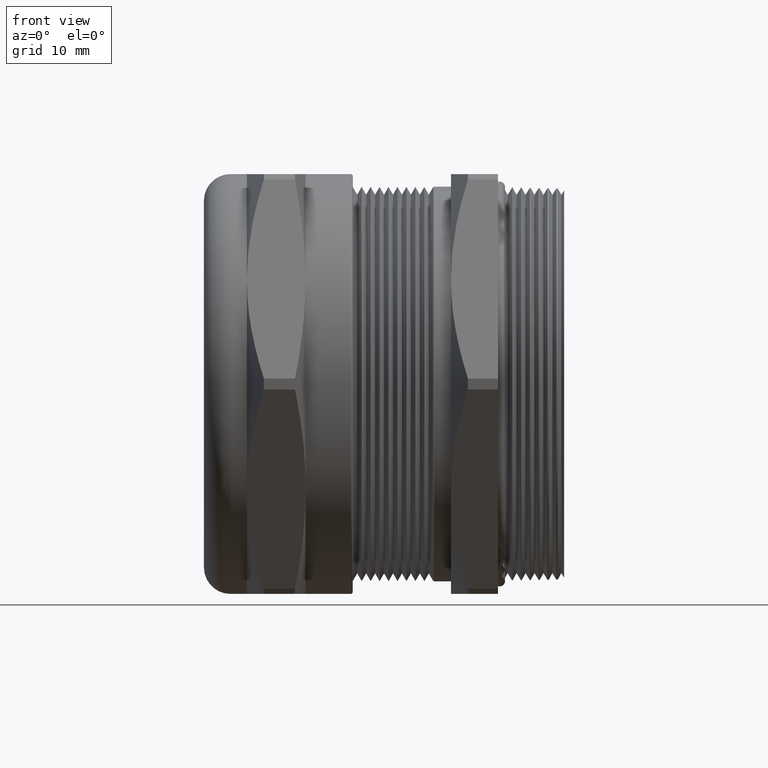
[diagram: clean part render]
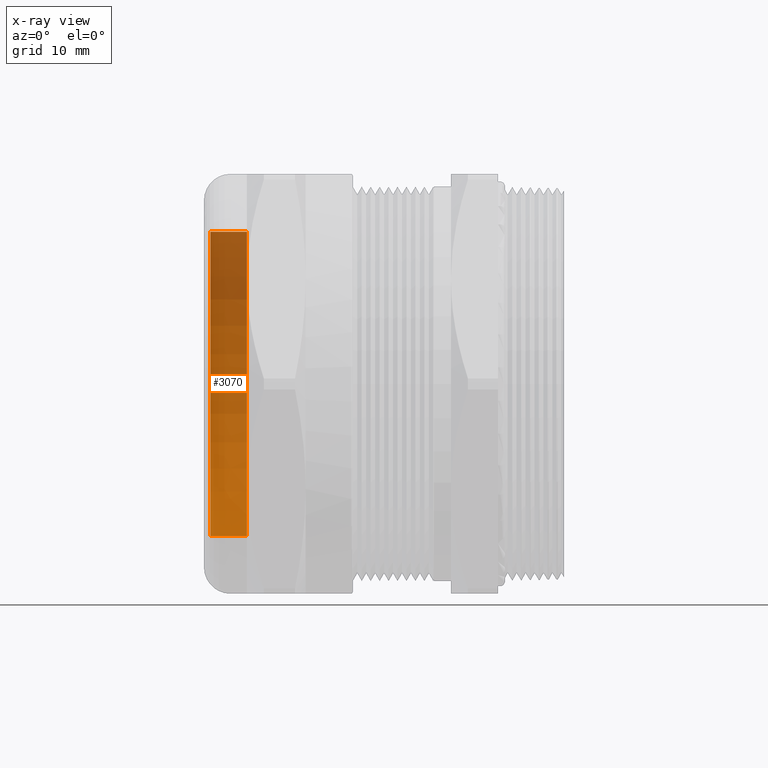
[diagram: x-ray — body ghosted, one internal face saturated and labeled with its STEP entity id]
A machine part, front view, then the same camera in x-ray: the body is ghosted and one INTERNAL B-rep face — a face not visible from any outside direction — is saturated and labeled: STEP entity #3070.
In plain terms, the highlighted cylindrical surface (partial cylindrical patch) has radius 18.1388 mm, axis along (1, 0, 0).
Its self-contained STEP definition (entity closure, byte-faithful):
#594 = DIRECTION ( 'NONE',  ( 0.0000000000000000000, 0.0000000000000000000, -1.000000000000000000 ) ) ;
#595 = DIRECTION ( 'NONE',  ( 1.000000000000000000, 0.0000000000000000000, 0.0000000000000000000 ) ) ;
#596 = CARTESIAN_POINT ( 'NONE',  ( 0.5452584728366800500, 0.0000000000000000000, 0.0000000000000000000 ) ) ;
#597 = AXIS2_PLACEMENT_3D ( 'NONE', #596, #595, #594 ) ;
#598 = CYLINDRICAL_SURFACE ( 'NONE', #597, 0.7141249999999999000 ) ;
#599 = FACE_OUTER_BOUND ( 'NONE', #4267, .T. ) ;
#605 = DIRECTION ( 'NONE',  ( 0.0000000000000000000, 0.0000000000000000000, -1.000000000000000000 ) ) ;
#606 = DIRECTION ( 'NONE',  ( 1.000000000000000000, 0.0000000000000000000, 0.0000000000000000000 ) ) ;
#607 = CARTESIAN_POINT ( 'NONE',  ( -0.8149999999999996100, 0.0000000000000000000, 0.0000000000000000000 ) ) ;
#608 = AXIS2_PLACEMENT_3D ( 'NONE', #607, #606, #605 ) ;
#609 = CIRCLE ( 'NONE', #608, 0.7141249999999999000 ) ;
#1885 = CARTESIAN_POINT ( 'NONE',  ( -0.8149999999999996100, 0.0000000000000000000, -0.7141249999999999000 ) ) ;
#1891 = CARTESIAN_POINT ( 'NONE',  ( -0.8149999999999996100, 8.745508954411033500E-017, 0.7141249999999999000 ) ) ;
#1948 = DIRECTION ( 'NONE',  ( 1.000000000000000000, 0.0000000000000000000, 0.0000000000000000000 ) ) ;
#1949 = VECTOR ( 'NONE', #1948, 39.37007874015748100 ) ;
#1950 = CARTESIAN_POINT ( 'NONE',  ( 0.5452584728366800500, 0.0000000000000000000, -0.7141249999999999000 ) ) ;
#1951 = LINE ( 'NONE', #1950, #1949 ) ;
#1991 = DIRECTION ( 'NONE',  ( 1.000000000000000000, 0.0000000000000000000, 0.0000000000000000000 ) ) ;
#1992 = VECTOR ( 'NONE', #1991, 39.37007874015748100 ) ;
#1993 = CARTESIAN_POINT ( 'NONE',  ( 0.5452584728366800500, 8.745508954411033500E-017, 0.7141249999999999000 ) ) ;
#1994 = LINE ( 'NONE', #1993, #1992 ) ;
#1995 = CARTESIAN_POINT ( 'NONE',  ( -0.6434999999999998500, 8.745508954411034800E-017, 0.7141250000000000100 ) ) ;
#1996 = DIRECTION ( 'NONE',  ( 0.0000000000000000000, 0.0000000000000000000, -1.000000000000000000 ) ) ;
#1997 = DIRECTION ( 'NONE',  ( 1.000000000000000000, 0.0000000000000000000, 0.0000000000000000000 ) ) ;
#1998 = CARTESIAN_POINT ( 'NONE',  ( -0.6434999999999998500, 0.0000000000000000000, 0.0000000000000000000 ) ) ;
#1999 = AXIS2_PLACEMENT_3D ( 'NONE', #1998, #1997, #1996 ) ;
#2000 = CIRCLE ( 'NONE', #1999, 0.7141250000000000100 ) ;
#2001 = CARTESIAN_POINT ( 'NONE',  ( -0.6434999999999998500, 0.0000000000000000000, -0.7141250000000000100 ) ) ;
#3067 = EDGE_CURVE ( 'NONE', #4054, #4049, #609, .T. ) ;
#3070 = ADVANCED_FACE ( 'NONE', ( #599 ), #598, .T. ) ;
#4049 = VERTEX_POINT ( 'NONE', #1891 ) ;
#4054 = VERTEX_POINT ( 'NONE', #1885 ) ;
#4082 = ORIENTED_EDGE ( 'NONE', *, *, #4084, .F. ) ;
#4084 = EDGE_CURVE ( 'NONE', #4054, #4086, #1951, .T. ) ;
#4086 = VERTEX_POINT ( 'NONE', #2001 ) ;
#4087 = EDGE_CURVE ( 'NONE', #4086, #4090, #2000, .T. ) ;
#4090 = VERTEX_POINT ( 'NONE', #1995 ) ;
#4091 = ORIENTED_EDGE ( 'NONE', *, *, #4087, .F. ) ;
#4092 = EDGE_CURVE ( 'NONE', #4049, #4090, #1994, .T. ) ;
#4093 = ORIENTED_EDGE ( 'NONE', *, *, #4092, .T. ) ;
#4267 = EDGE_LOOP ( 'NONE', ( #4268, #4093, #4091, #4082 ) ) ;
#4268 = ORIENTED_EDGE ( 'NONE', *, *, #3067, .T. ) ;